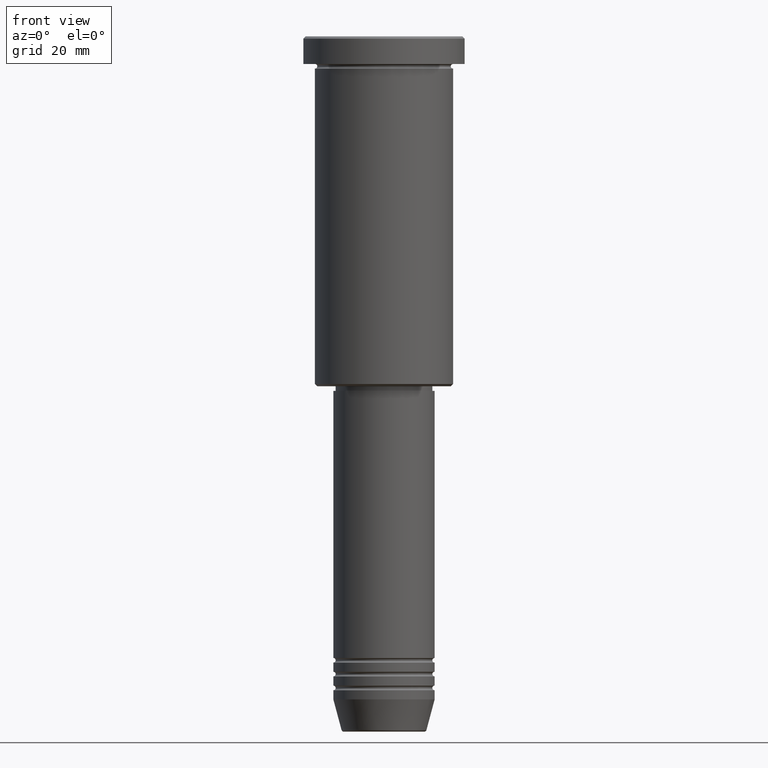
[diagram: clean part render]
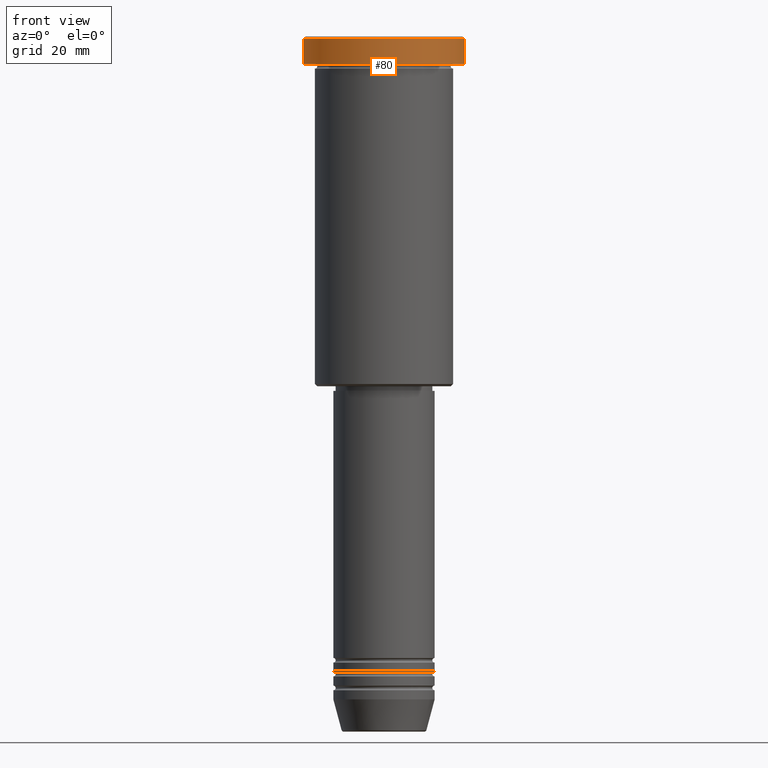
[diagram: same view with one face highlighted and labeled with its STEP entity id]
A machine part, front view. The second image highlights one B-rep face of the part: STEP entity #80.
In plain terms, the highlighted cylindrical surface (partial cylindrical patch) has radius 17.5 mm, axis along (-0, -0, 1).
Its self-contained STEP definition (entity closure, byte-faithful):
#27 = EDGE_CURVE ( 'NONE', #566, #305, #884, .T. ) ;
#47 = DIRECTION ( 'NONE',  ( -0.000000000000000000, -0.000000000000000000, 1.000000000000000000 ) ) ;
#71 = VECTOR ( 'NONE', #455, 1000.000000000000000 ) ;
#80 = ADVANCED_FACE ( 'NONE', ( #855 ), #411, .T. ) ;
#183 = DIRECTION ( 'NONE',  ( 0.000000000000000000, 0.000000000000000000, -1.000000000000000000 ) ) ;
#264 = EDGE_LOOP ( 'NONE', ( #818, #1103, #1101, #928 ) ) ;
#292 = EDGE_CURVE ( 'NONE', #305, #1116, #358, .T. ) ;
#305 = VERTEX_POINT ( 'NONE', #575 ) ;
#317 = AXIS2_PLACEMENT_3D ( 'NONE', #808, #183, #351 ) ;
#351 = DIRECTION ( 'NONE',  ( 1.000000000000000000, 0.000000000000000000, 0.000000000000000000 ) ) ;
#358 = LINE ( 'NONE', #1106, #71 ) ;
#364 = AXIS2_PLACEMENT_3D ( 'NONE', #786, #47, #1129 ) ;
#411 = CYLINDRICAL_SURFACE ( 'NONE', #447, 17.50000000000000000 ) ;
#447 = AXIS2_PLACEMENT_3D ( 'NONE', #782, #1054, #1151 ) ;
#455 = DIRECTION ( 'NONE',  ( -0.000000000000000000, -0.000000000000000000, 1.000000000000000000 ) ) ;
#512 = CIRCLE ( 'NONE', #317, 17.50000000000000000 ) ;
#566 = VERTEX_POINT ( 'NONE', #1053 ) ;
#575 = CARTESIAN_POINT ( 'NONE',  ( 17.50000000000000000, 0.000000000000000000, -5.999999999999995559 ) ) ;
#604 = CARTESIAN_POINT ( 'NONE',  ( -17.50000000000000000, 2.143131898507868248E-15, 0.000000000000000000 ) ) ;
#629 = VERTEX_POINT ( 'NONE', #740 ) ;
#740 = CARTESIAN_POINT ( 'NONE',  ( -17.50000000000000000, 2.143131898507868248E-15, -0.4999999999999866773 ) ) ;
#782 = CARTESIAN_POINT ( 'NONE',  ( 0.000000000000000000, 0.000000000000000000, 0.000000000000000000 ) ) ;
#785 = DIRECTION ( 'NONE',  ( -0.000000000000000000, -0.000000000000000000, 1.000000000000000000 ) ) ;
#786 = CARTESIAN_POINT ( 'NONE',  ( 0.000000000000000000, 0.000000000000000000, -5.999999999999995559 ) ) ;
#808 = CARTESIAN_POINT ( 'NONE',  ( 0.000000000000000000, 0.000000000000000000, -0.4999999999999866773 ) ) ;
#818 = ORIENTED_EDGE ( 'NONE', *, *, #1172, .F. ) ;
#855 = FACE_OUTER_BOUND ( 'NONE', #264, .T. ) ;
#884 = CIRCLE ( 'NONE', #364, 17.50000000000000000 ) ;
#928 = ORIENTED_EDGE ( 'NONE', *, *, #1028, .T. ) ;
#948 = LINE ( 'NONE', #604, #1100 ) ;
#1028 = EDGE_CURVE ( 'NONE', #1116, #629, #512, .T. ) ;
#1053 = CARTESIAN_POINT ( 'NONE',  ( -17.50000000000000000, 2.143131898507868248E-15, -5.999999999999995559 ) ) ;
#1054 = DIRECTION ( 'NONE',  ( -0.000000000000000000, -0.000000000000000000, 1.000000000000000000 ) ) ;
#1100 = VECTOR ( 'NONE', #785, 1000.000000000000000 ) ;
#1101 = ORIENTED_EDGE ( 'NONE', *, *, #292, .T. ) ;
#1102 = CARTESIAN_POINT ( 'NONE',  ( 17.50000000000000000, 0.000000000000000000, -0.4999999999999866773 ) ) ;
#1103 = ORIENTED_EDGE ( 'NONE', *, *, #27, .T. ) ;
#1106 = CARTESIAN_POINT ( 'NONE',  ( 17.50000000000000000, 0.000000000000000000, 0.000000000000000000 ) ) ;
#1116 = VERTEX_POINT ( 'NONE', #1102 ) ;
#1129 = DIRECTION ( 'NONE',  ( 1.000000000000000000, 0.000000000000000000, 0.000000000000000000 ) ) ;
#1151 = DIRECTION ( 'NONE',  ( 1.000000000000000000, 0.000000000000000000, 0.000000000000000000 ) ) ;
#1172 = EDGE_CURVE ( 'NONE', #566, #629, #948, .T. ) ;